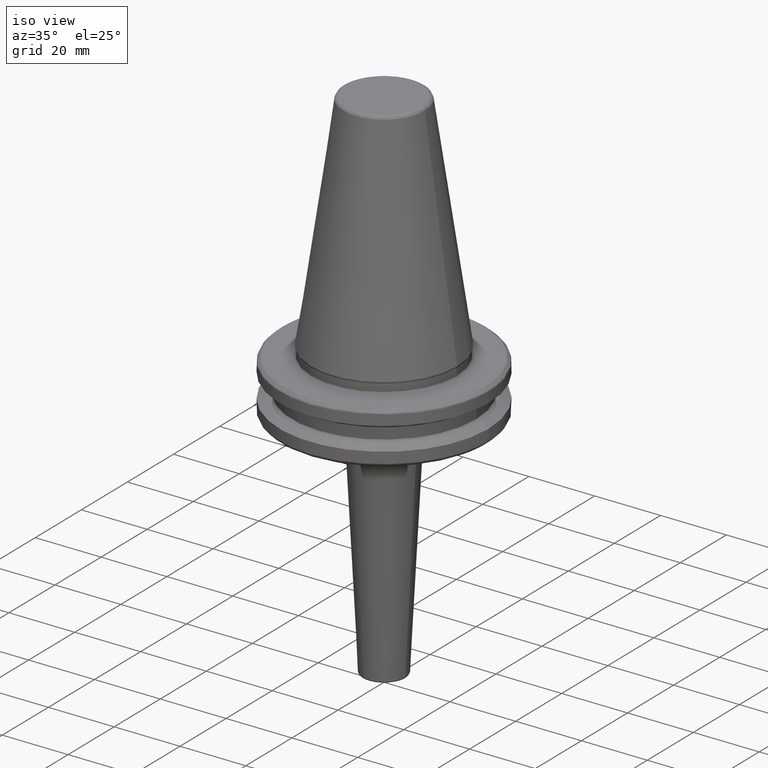
[diagram: clean part render]
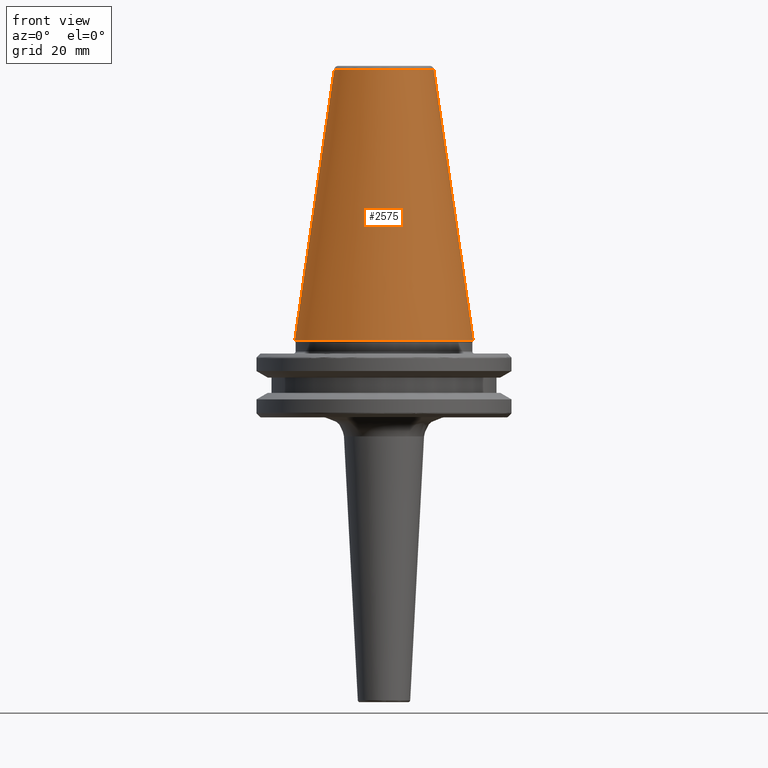
[diagram: tour spotlight — one face highlighted and labeled with its STEP entity id]
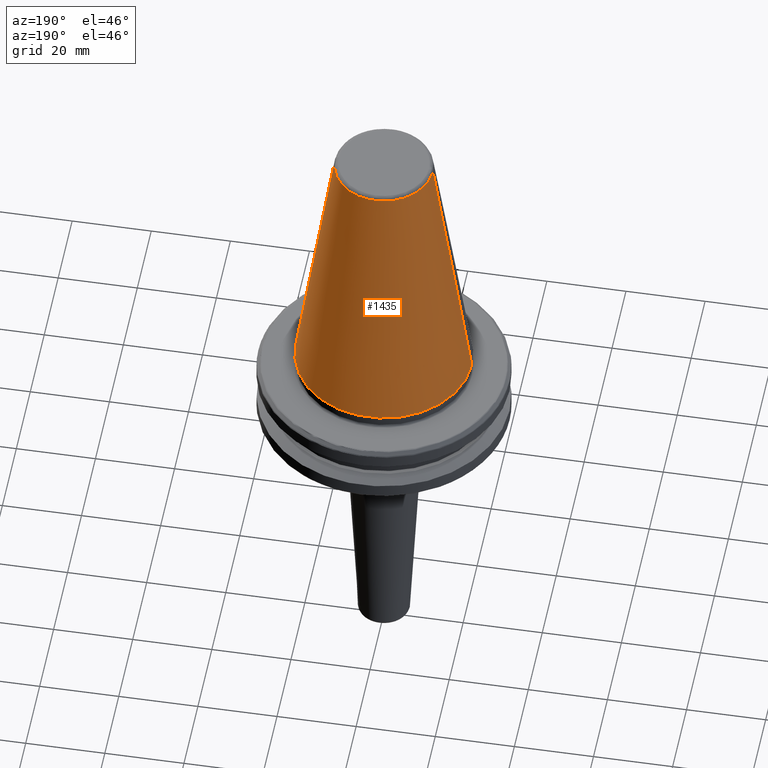
[diagram: tour spotlight — one face highlighted and labeled with its STEP entity id]
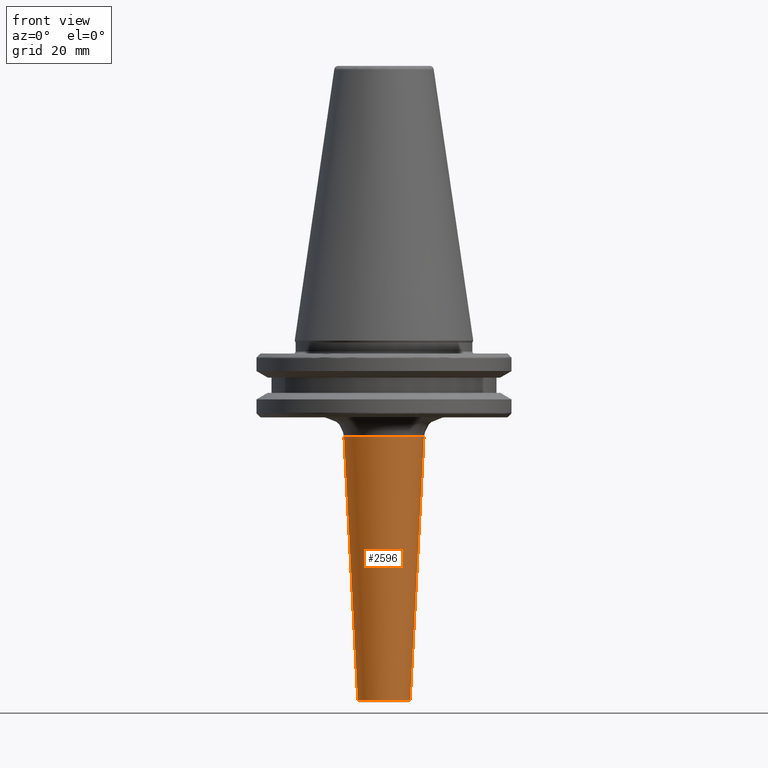
[diagram: tour spotlight — one face highlighted and labeled with its STEP entity id]
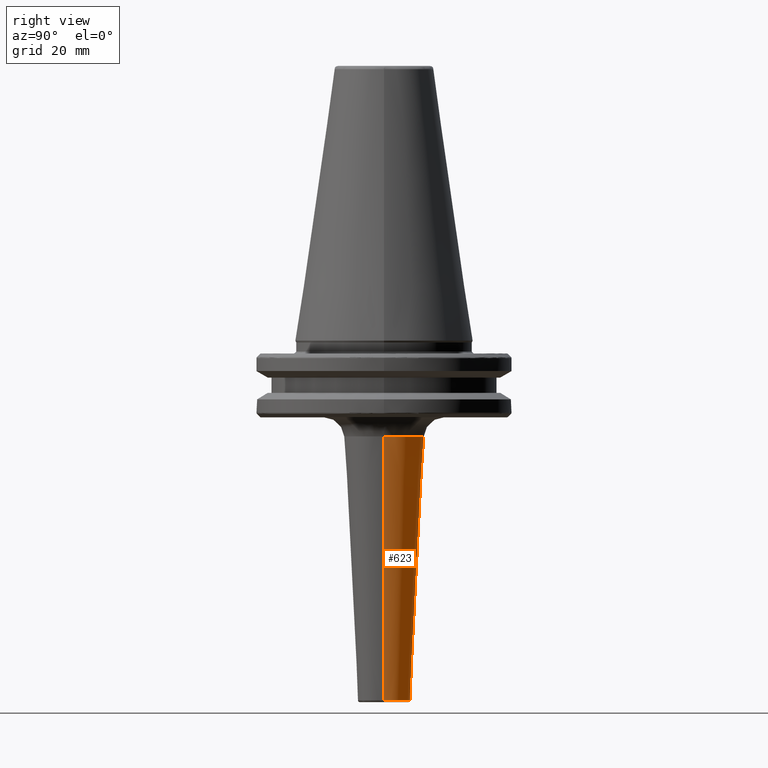
[diagram: tour spotlight — one face highlighted and labeled with its STEP entity id]
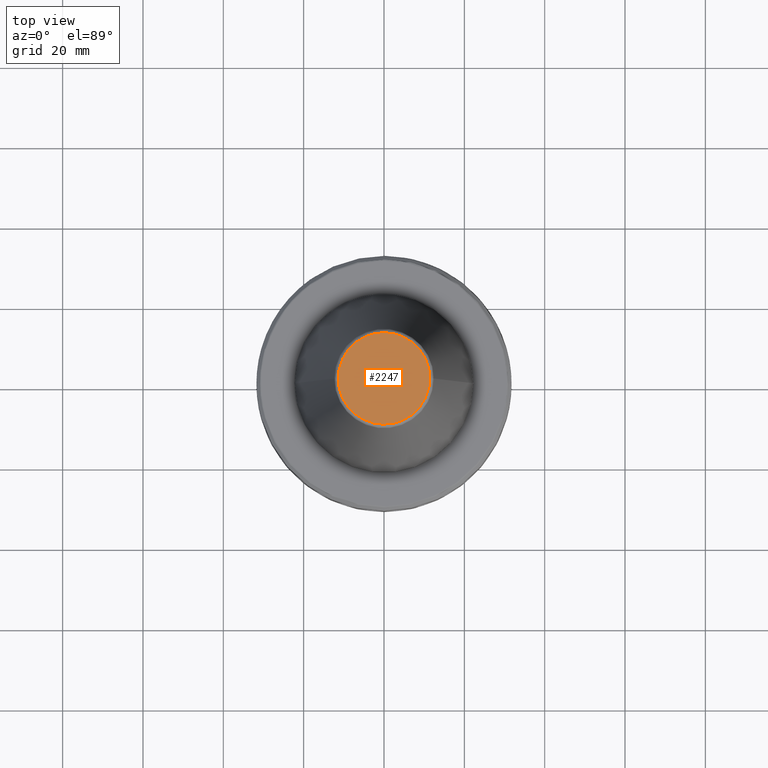
[diagram: tour spotlight — one face highlighted and labeled with its STEP entity id]
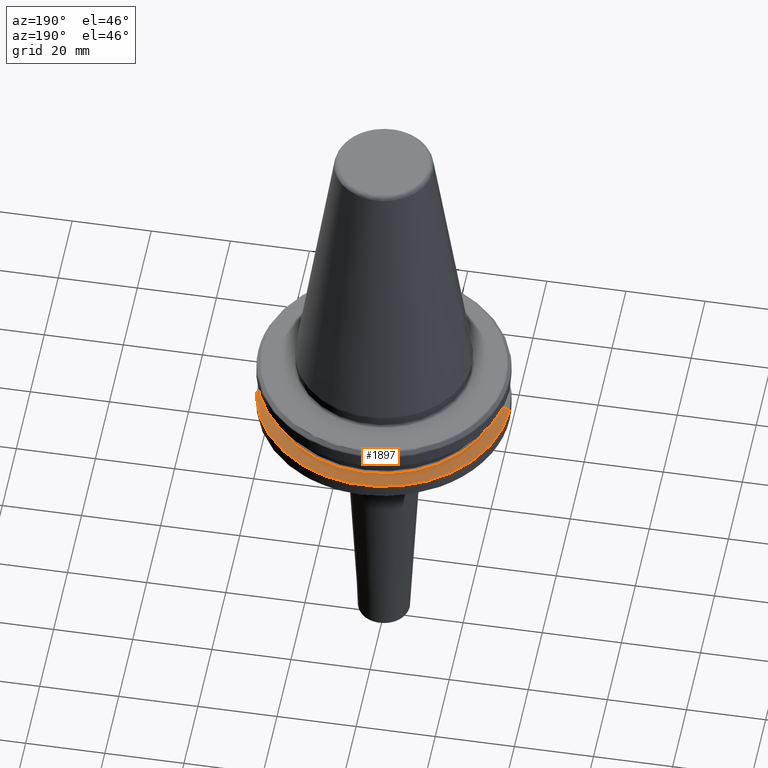
[diagram: tour spotlight — one face highlighted and labeled with its STEP entity id]
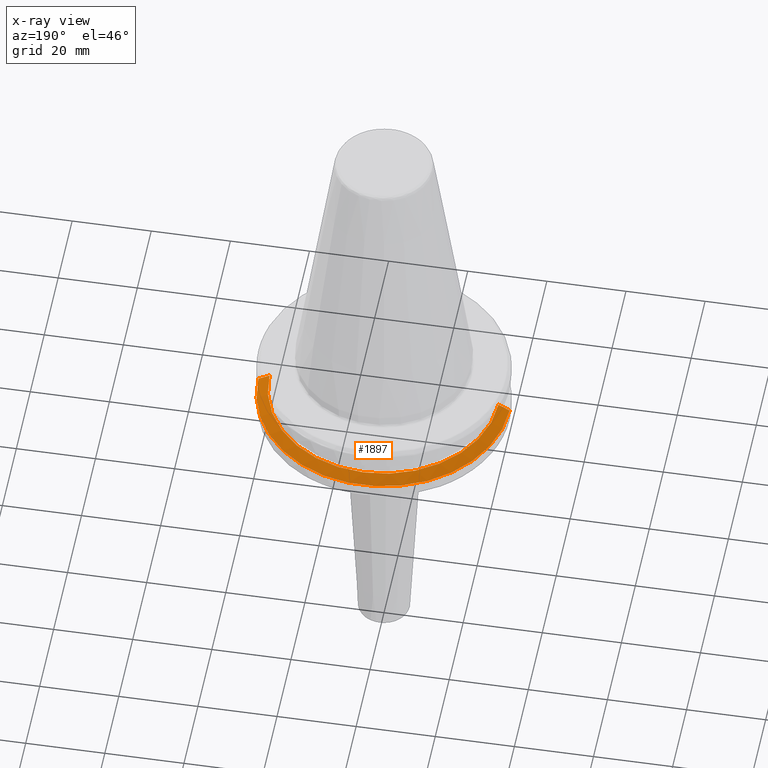
[diagram: x-ray of the same camera — body ghosted, this tour face saturated]
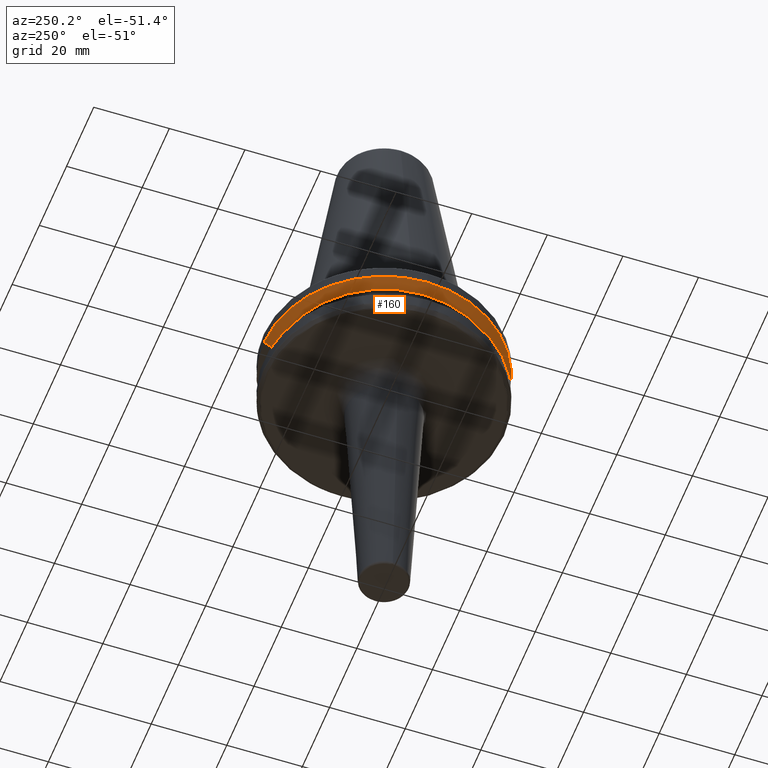
[diagram: tour spotlight — one face highlighted and labeled with its STEP entity id]
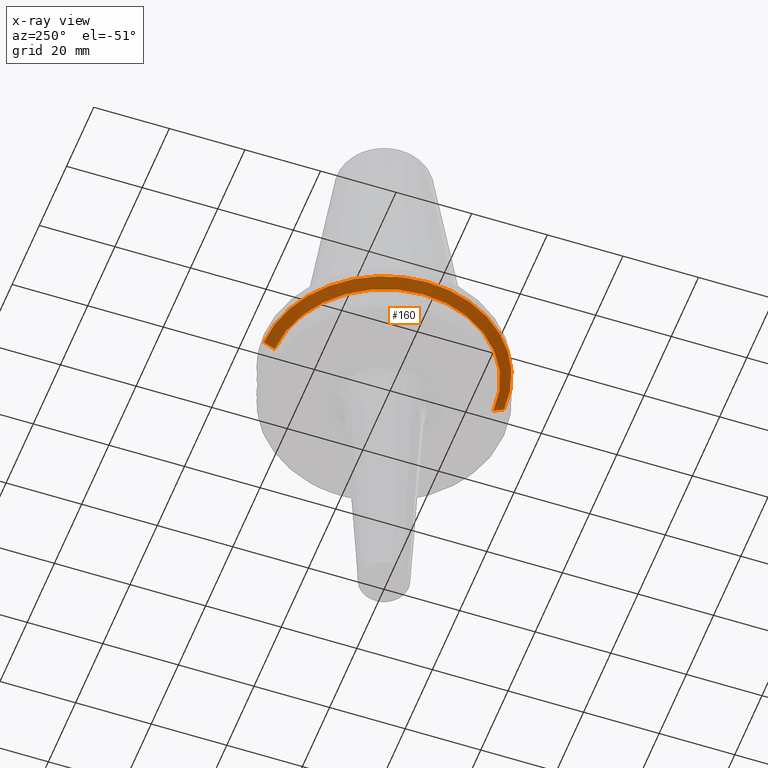
[diagram: x-ray of the same camera — body ghosted, this tour face saturated]
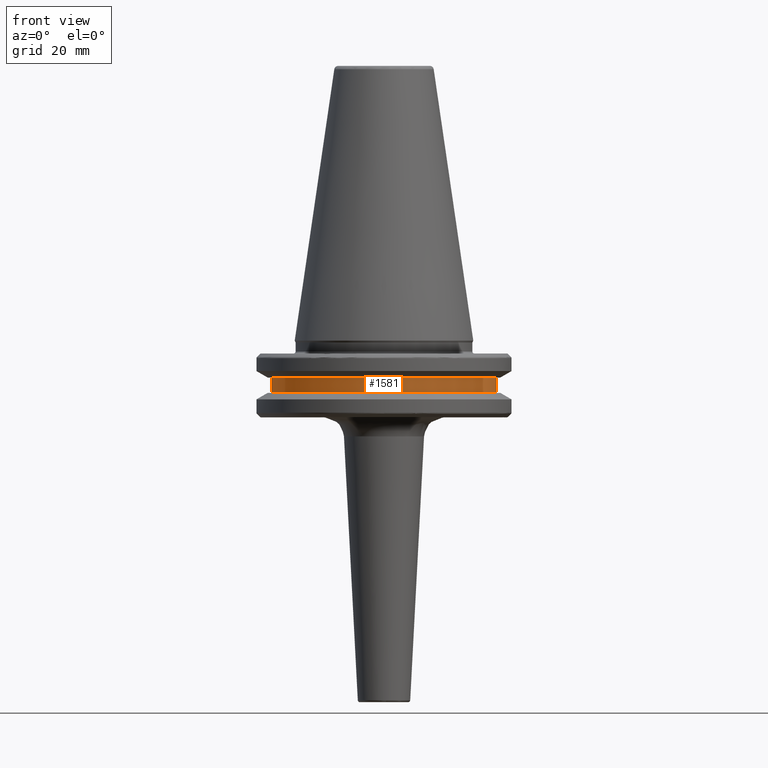
[diagram: tour spotlight — one face highlighted and labeled with its STEP entity id]
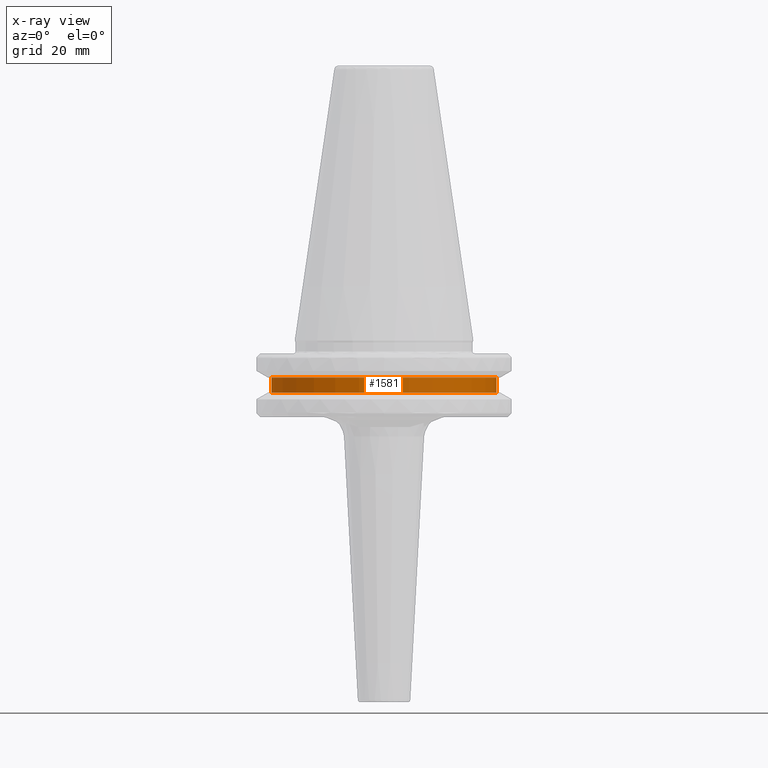
[diagram: x-ray of the same camera — body ghosted, this tour face saturated]
A machine part: a face-by-face anatomy tour. The part has 64 B-rep faces; the first image is the clean iso view, then the 8 largest visible faces are spotlighted one at a time (largest first), each with its STEP entity span.

Face 1 — front view, entity #2575. In plain terms, the highlighted conical surface has half-angle 8.297 deg.
Definition (entity closure, byte-faithful):
#354 = EDGE_CURVE ( 'NONE', #2271, #374, #592, .T. ) ;
#374 = VERTEX_POINT ( 'NONE', #1307 ) ;
#547 = EDGE_CURVE ( 'NONE', #1623, #1583, #2807, .T. ) ;
#592 = CIRCLE ( 'NONE', #1392, 22.22500000000000100 ) ;
#605 = DIRECTION ( 'NONE',  ( -0.0000000000000000000, -0.0000000000000000000, 1.000000000000000000 ) ) ;
#628 = AXIS2_PLACEMENT_3D ( 'NONE', #2269, #2731, #2703 ) ;
#656 = EDGE_CURVE ( 'NONE', #1623, #374, #2080, .T. ) ;
#728 = DIRECTION ( 'NONE',  ( 0.1443082272673070500, 1.767266086135363700E-017, -0.9895327864921743500 ) ) ;
#826 = ORIENTED_EDGE ( 'NONE', *, *, #354, .T. ) ;
#1058 = LINE ( 'NONE', #2000, #2778 ) ;
#1094 = ORIENTED_EDGE ( 'NONE', *, *, #1850, .T. ) ;
#1168 = CARTESIAN_POINT ( 'NONE',  ( 22.22500000000000100, 2.721777511104992800E-015, 0.0000000000000000000 ) ) ;
#1307 = CARTESIAN_POINT ( 'NONE',  ( 22.22500000000000500, 0.0000000000000000000, 0.0000000000000000000 ) ) ;
#1390 = CARTESIAN_POINT ( 'NONE',  ( 12.37469537611110800, 2.118620309691396900E-015, 67.54430822726729400 ) ) ;
#1392 = AXIS2_PLACEMENT_3D ( 'NONE', #2883, #605, #2424 ) ;
#1522 = CARTESIAN_POINT ( 'NONE',  ( 0.0000000000000000000, 0.0000000000000000000, 0.0000000000000000000 ) ) ;
#1533 = DIRECTION ( 'NONE',  ( -1.000000000000000000, 0.0000000000000000000, 0.0000000000000000000 ) ) ;
#1583 = VERTEX_POINT ( 'NONE', #1849 ) ;
#1623 = VERTEX_POINT ( 'NONE', #1390 ) ;
#1769 = DIRECTION ( 'NONE',  ( -0.1443082272673070500, 0.0000000000000000000, -0.9895327864921743500 ) ) ;
#1849 = CARTESIAN_POINT ( 'NONE',  ( -12.37469537611110800, 0.0000000000000000000, 67.54430822726729400 ) ) ;
#1850 = EDGE_CURVE ( 'NONE', #1583, #2271, #1058, .T. ) ;
#2000 = CARTESIAN_POINT ( 'NONE',  ( -22.22500000000000100, 0.0000000000000000000, 0.0000000000000000000 ) ) ;
#2080 = LINE ( 'NONE', #1168, #2468 ) ;
#2095 = AXIS2_PLACEMENT_3D ( 'NONE', #1522, #2878, #1533 ) ;
#2269 = CARTESIAN_POINT ( 'NONE',  ( 0.0000000000000000000, 0.0000000000000000000, 67.54430822726729400 ) ) ;
#2271 = VERTEX_POINT ( 'NONE', #2436 ) ;
#2381 = ORIENTED_EDGE ( 'NONE', *, *, #656, .F. ) ;
#2424 = DIRECTION ( 'NONE',  ( -1.000000000000000000, 0.0000000000000000000, 6.244223985518314900E-016 ) ) ;
#2436 = CARTESIAN_POINT ( 'NONE',  ( -22.22500000000000500, 2.721777511104993200E-015, 0.0000000000000000000 ) ) ;
#2468 = VECTOR ( 'NONE', #728, 1000.000000000000000 ) ;
#2575 = ADVANCED_FACE ( 'NONE', ( #3003 ), #3001, .T. ) ;
#2613 = ORIENTED_EDGE ( 'NONE', *, *, #547, .T. ) ;
#2703 = DIRECTION ( 'NONE',  ( -1.000000000000000000, 0.0000000000000000000, 0.0000000000000000000 ) ) ;
#2726 = EDGE_LOOP ( 'NONE', ( #2381, #2613, #1094, #826 ) ) ;
#2731 = DIRECTION ( 'NONE',  ( 0.0000000000000000000, 0.0000000000000000000, -1.000000000000000000 ) ) ;
#2778 = VECTOR ( 'NONE', #1769, 1000.000000000000000 ) ;
#2807 = CIRCLE ( 'NONE', #628, 12.37469537611110800 ) ;
#2878 = DIRECTION ( 'NONE',  ( 0.0000000000000000000, 0.0000000000000000000, -1.000000000000000000 ) ) ;
#2883 = CARTESIAN_POINT ( 'NONE',  ( 0.0000000000000000000, 0.0000000000000000000, 0.0000000000000000000 ) ) ;
#3001 = CONICAL_SURFACE ( 'NONE', #2095, 22.22500000000000100, 0.1448138465474190500 ) ;
#3003 = FACE_OUTER_BOUND ( 'NONE', #2726, .T. ) ;

Face 2 — auxiliary view, entity #1435. In plain terms, the highlighted conical surface has half-angle 8.297 deg.
Definition (entity closure, byte-faithful):
#66 = EDGE_CURVE ( 'NONE', #374, #2271, #1303, .T. ) ;
#374 = VERTEX_POINT ( 'NONE', #1307 ) ;
#484 = EDGE_LOOP ( 'NONE', ( #1814, #2718, #1549, #2696 ) ) ;
#553 = DIRECTION ( 'NONE',  ( 0.0000000000000000000, 0.0000000000000000000, -1.000000000000000000 ) ) ;
#656 = EDGE_CURVE ( 'NONE', #1623, #374, #2080, .T. ) ;
#728 = DIRECTION ( 'NONE',  ( 0.1443082272673070500, 1.767266086135363700E-017, -0.9895327864921743500 ) ) ;
#785 = CARTESIAN_POINT ( 'NONE',  ( 0.0000000000000000000, 0.0000000000000000000, 0.0000000000000000000 ) ) ;
#1058 = LINE ( 'NONE', #2000, #2778 ) ;
#1078 = DIRECTION ( 'NONE',  ( 0.0000000000000000000, 0.0000000000000000000, -1.000000000000000000 ) ) ;
#1168 = CARTESIAN_POINT ( 'NONE',  ( 22.22500000000000100, 2.721777511104992800E-015, 0.0000000000000000000 ) ) ;
#1273 = CIRCLE ( 'NONE', #2713, 12.37469537611110800 ) ;
#1303 = CIRCLE ( 'NONE', #2508, 22.22500000000000100 ) ;
#1307 = CARTESIAN_POINT ( 'NONE',  ( 22.22500000000000500, 0.0000000000000000000, 0.0000000000000000000 ) ) ;
#1390 = CARTESIAN_POINT ( 'NONE',  ( 12.37469537611110800, 2.118620309691396900E-015, 67.54430822726729400 ) ) ;
#1435 = ADVANCED_FACE ( 'NONE', ( #2303 ), #2707, .T. ) ;
#1446 = CARTESIAN_POINT ( 'NONE',  ( 0.0000000000000000000, 0.0000000000000000000, 0.0000000000000000000 ) ) ;
#1549 = ORIENTED_EDGE ( 'NONE', *, *, #66, .T. ) ;
#1559 = AXIS2_PLACEMENT_3D ( 'NONE', #785, #553, #2620 ) ;
#1583 = VERTEX_POINT ( 'NONE', #1849 ) ;
#1623 = VERTEX_POINT ( 'NONE', #1390 ) ;
#1769 = DIRECTION ( 'NONE',  ( -0.1443082272673070500, 0.0000000000000000000, -0.9895327864921743500 ) ) ;
#1814 = ORIENTED_EDGE ( 'NONE', *, *, #2686, .T. ) ;
#1849 = CARTESIAN_POINT ( 'NONE',  ( -12.37469537611110800, 0.0000000000000000000, 67.54430822726729400 ) ) ;
#1850 = EDGE_CURVE ( 'NONE', #1583, #2271, #1058, .T. ) ;
#2000 = CARTESIAN_POINT ( 'NONE',  ( -22.22500000000000100, 0.0000000000000000000, 0.0000000000000000000 ) ) ;
#2080 = LINE ( 'NONE', #1168, #2468 ) ;
#2271 = VERTEX_POINT ( 'NONE', #2436 ) ;
#2303 = FACE_OUTER_BOUND ( 'NONE', #484, .T. ) ;
#2436 = CARTESIAN_POINT ( 'NONE',  ( -22.22500000000000500, 2.721777511104993200E-015, 0.0000000000000000000 ) ) ;
#2448 = CARTESIAN_POINT ( 'NONE',  ( 0.0000000000000000000, 0.0000000000000000000, 67.54430822726729400 ) ) ;
#2468 = VECTOR ( 'NONE', #728, 1000.000000000000000 ) ;
#2508 = AXIS2_PLACEMENT_3D ( 'NONE', #1446, #2614, #2843 ) ;
#2614 = DIRECTION ( 'NONE',  ( -0.0000000000000000000, -0.0000000000000000000, 1.000000000000000000 ) ) ;
#2620 = DIRECTION ( 'NONE',  ( -1.000000000000000000, 0.0000000000000000000, 0.0000000000000000000 ) ) ;
#2686 = EDGE_CURVE ( 'NONE', #1583, #1623, #1273, .T. ) ;
#2688 = DIRECTION ( 'NONE',  ( -1.000000000000000000, 0.0000000000000000000, 0.0000000000000000000 ) ) ;
#2696 = ORIENTED_EDGE ( 'NONE', *, *, #1850, .F. ) ;
#2707 = CONICAL_SURFACE ( 'NONE', #1559, 22.22500000000000100, 0.1448138465474190500 ) ;
#2713 = AXIS2_PLACEMENT_3D ( 'NONE', #2448, #1078, #2688 ) ;
#2718 = ORIENTED_EDGE ( 'NONE', *, *, #656, .T. ) ;
#2778 = VECTOR ( 'NONE', #1769, 1000.000000000000000 ) ;
#2843 = DIRECTION ( 'NONE',  ( -1.000000000000000000, 0.0000000000000000000, 6.244223985518314900E-016 ) ) ;

Face 3 — front view, entity #2596. In plain terms, the highlighted conical surface has half-angle 3 deg.
Definition (entity closure, byte-faithful):
#10 = DIRECTION ( 'NONE',  ( 1.000000000000000000, 0.0000000000000000000, 0.0000000000000000000 ) ) ;
#31 = AXIS2_PLACEMENT_3D ( 'NONE', #1517, #95, #1741 ) ;
#95 = DIRECTION ( 'NONE',  ( 0.0000000000000000000, 0.0000000000000000000, -1.000000000000000000 ) ) ;
#190 = CIRCLE ( 'NONE', #750, 6.524832484019842800 ) ;
#239 = CARTESIAN_POINT ( 'NONE',  ( -9.967386710968712600, 1.220652823145169800E-015, -23.83832021878532700 ) ) ;
#298 = ORIENTED_EDGE ( 'NONE', *, *, #1210, .F. ) ;
#414 = LINE ( 'NONE', #2908, #2729 ) ;
#526 = VECTOR ( 'NONE', #2555, 1000.000000000000100 ) ;
#581 = AXIS2_PLACEMENT_3D ( 'NONE', #2001, #591, #2223 ) ;
#591 = DIRECTION ( 'NONE',  ( 0.0000000000000000000, -0.0000000000000000000, 1.000000000000000000 ) ) ;
#640 = VERTEX_POINT ( 'NONE', #1873 ) ;
#750 = AXIS2_PLACEMENT_3D ( 'NONE', #2780, #1432, #10 ) ;
#803 = CARTESIAN_POINT ( 'NONE',  ( -6.524832484019842800, 1.009857172398963600E-015, -89.52616797812147800 ) ) ;
#861 = EDGE_LOOP ( 'NONE', ( #298, #1363, #2610, #2272 ) ) ;
#1210 = EDGE_CURVE ( 'NONE', #1354, #2085, #1375, .T. ) ;
#1314 = CARTESIAN_POINT ( 'NONE',  ( 9.967386710968712600, 0.0000000000000000000, -23.83832021878532000 ) ) ;
#1354 = VERTEX_POINT ( 'NONE', #803 ) ;
#1363 = ORIENTED_EDGE ( 'NONE', *, *, #2971, .T. ) ;
#1375 = LINE ( 'NONE', #239, #526 ) ;
#1432 = DIRECTION ( 'NONE',  ( 0.0000000000000000000, 0.0000000000000000000, 1.000000000000000000 ) ) ;
#1440 = EDGE_CURVE ( 'NONE', #2655, #2085, #1634, .T. ) ;
#1517 = CARTESIAN_POINT ( 'NONE',  ( 0.0000000000000000000, 0.0000000000000000000, -23.83832021878532000 ) ) ;
#1558 = DIRECTION ( 'NONE',  ( 0.05233595624293729800, 0.0000000000000000000, 0.9986295347545742800 ) ) ;
#1634 = CIRCLE ( 'NONE', #31, 9.967386710968714400 ) ;
#1741 = DIRECTION ( 'NONE',  ( -1.000000000000000000, 0.0000000000000000000, 0.0000000000000000000 ) ) ;
#1818 = CONICAL_SURFACE ( 'NONE', #581, 9.967386710968712600, 0.05235987755982334000 ) ;
#1859 = CARTESIAN_POINT ( 'NONE',  ( -9.967386710968712600, 1.220652823145169800E-015, -23.83832021878532000 ) ) ;
#1873 = CARTESIAN_POINT ( 'NONE',  ( 6.524832484019842800, 0.0000000000000000000, -89.52616797812147800 ) ) ;
#1899 = EDGE_CURVE ( 'NONE', #640, #2655, #414, .T. ) ;
#2001 = CARTESIAN_POINT ( 'NONE',  ( 0.0000000000000000000, 0.0000000000000000000, -23.83832021878532700 ) ) ;
#2085 = VERTEX_POINT ( 'NONE', #1859 ) ;
#2223 = DIRECTION ( 'NONE',  ( 1.000000000000000000, 0.0000000000000000000, 0.0000000000000000000 ) ) ;
#2272 = ORIENTED_EDGE ( 'NONE', *, *, #1440, .T. ) ;
#2318 = FACE_OUTER_BOUND ( 'NONE', #861, .T. ) ;
#2555 = DIRECTION ( 'NONE',  ( -0.05233595624293729800, 6.409306129322909800E-018, 0.9986295347545742800 ) ) ;
#2596 = ADVANCED_FACE ( 'NONE', ( #2318 ), #1818, .T. ) ;
#2610 = ORIENTED_EDGE ( 'NONE', *, *, #1899, .T. ) ;
#2655 = VERTEX_POINT ( 'NONE', #1314 ) ;
#2729 = VECTOR ( 'NONE', #1558, 1000.000000000000100 ) ;
#2780 = CARTESIAN_POINT ( 'NONE',  ( 0.0000000000000000000, 0.0000000000000000000, -89.52616797812147800 ) ) ;
#2908 = CARTESIAN_POINT ( 'NONE',  ( 9.967386710968712600, 0.0000000000000000000, -23.83832021878532700 ) ) ;
#2971 = EDGE_CURVE ( 'NONE', #1354, #640, #190, .T. ) ;

Face 4 — right view, entity #623. In plain terms, the highlighted conical surface has half-angle 3 deg.
Definition (entity closure, byte-faithful):
#239 = CARTESIAN_POINT ( 'NONE',  ( -9.967386710968712600, 1.220652823145169800E-015, -23.83832021878532700 ) ) ;
#249 = CIRCLE ( 'NONE', #1379, 9.967386710968714400 ) ;
#414 = LINE ( 'NONE', #2908, #2729 ) ;
#464 = DIRECTION ( 'NONE',  ( 0.0000000000000000000, 0.0000000000000000000, 1.000000000000000000 ) ) ;
#526 = VECTOR ( 'NONE', #2555, 1000.000000000000100 ) ;
#623 = ADVANCED_FACE ( 'NONE', ( #1473 ), #1333, .T. ) ;
#640 = VERTEX_POINT ( 'NONE', #1873 ) ;
#721 = DIRECTION ( 'NONE',  ( 1.000000000000000000, 0.0000000000000000000, 0.0000000000000000000 ) ) ;
#735 = CARTESIAN_POINT ( 'NONE',  ( 0.0000000000000000000, 0.0000000000000000000, -23.83832021878532700 ) ) ;
#803 = CARTESIAN_POINT ( 'NONE',  ( -6.524832484019842800, 1.009857172398963600E-015, -89.52616797812147800 ) ) ;
#821 = ORIENTED_EDGE ( 'NONE', *, *, #2928, .T. ) ;
#1062 = CARTESIAN_POINT ( 'NONE',  ( 0.0000000000000000000, 0.0000000000000000000, -23.83832021878532000 ) ) ;
#1210 = EDGE_CURVE ( 'NONE', #1354, #2085, #1375, .T. ) ;
#1292 = EDGE_LOOP ( 'NONE', ( #2110, #1490, #821, #1479 ) ) ;
#1298 = DIRECTION ( 'NONE',  ( -1.000000000000000000, 0.0000000000000000000, 0.0000000000000000000 ) ) ;
#1314 = CARTESIAN_POINT ( 'NONE',  ( 9.967386710968712600, 0.0000000000000000000, -23.83832021878532000 ) ) ;
#1333 = CONICAL_SURFACE ( 'NONE', #2115, 9.967386710968712600, 0.05235987755982334000 ) ;
#1354 = VERTEX_POINT ( 'NONE', #803 ) ;
#1375 = LINE ( 'NONE', #239, #526 ) ;
#1379 = AXIS2_PLACEMENT_3D ( 'NONE', #1062, #2662, #1298 ) ;
#1473 = FACE_OUTER_BOUND ( 'NONE', #1292, .T. ) ;
#1479 = ORIENTED_EDGE ( 'NONE', *, *, #1899, .F. ) ;
#1490 = ORIENTED_EDGE ( 'NONE', *, *, #1210, .T. ) ;
#1558 = DIRECTION ( 'NONE',  ( 0.05233595624293729800, 0.0000000000000000000, 0.9986295347545742800 ) ) ;
#1859 = CARTESIAN_POINT ( 'NONE',  ( -9.967386710968712600, 1.220652823145169800E-015, -23.83832021878532000 ) ) ;
#1871 = CARTESIAN_POINT ( 'NONE',  ( 0.0000000000000000000, 0.0000000000000000000, -89.52616797812147800 ) ) ;
#1873 = CARTESIAN_POINT ( 'NONE',  ( 6.524832484019842800, 0.0000000000000000000, -89.52616797812147800 ) ) ;
#1899 = EDGE_CURVE ( 'NONE', #640, #2655, #414, .T. ) ;
#2085 = VERTEX_POINT ( 'NONE', #1859 ) ;
#2104 = DIRECTION ( 'NONE',  ( 1.000000000000000000, 0.0000000000000000000, 0.0000000000000000000 ) ) ;
#2110 = ORIENTED_EDGE ( 'NONE', *, *, #2945, .T. ) ;
#2115 = AXIS2_PLACEMENT_3D ( 'NONE', #735, #2588, #721 ) ;
#2516 = AXIS2_PLACEMENT_3D ( 'NONE', #1871, #464, #2104 ) ;
#2555 = DIRECTION ( 'NONE',  ( -0.05233595624293729800, 6.409306129322909800E-018, 0.9986295347545742800 ) ) ;
#2568 = CIRCLE ( 'NONE', #2516, 6.524832484019842800 ) ;
#2588 = DIRECTION ( 'NONE',  ( 0.0000000000000000000, -0.0000000000000000000, 1.000000000000000000 ) ) ;
#2655 = VERTEX_POINT ( 'NONE', #1314 ) ;
#2662 = DIRECTION ( 'NONE',  ( 0.0000000000000000000, 0.0000000000000000000, -1.000000000000000000 ) ) ;
#2729 = VECTOR ( 'NONE', #1558, 1000.000000000000100 ) ;
#2908 = CARTESIAN_POINT ( 'NONE',  ( 9.967386710968712600, 0.0000000000000000000, -23.83832021878532700 ) ) ;
#2928 = EDGE_CURVE ( 'NONE', #2085, #2655, #249, .T. ) ;
#2945 = EDGE_CURVE ( 'NONE', #640, #1354, #2568, .T. ) ;

Face 5 — top view, entity #2247. In plain terms, the highlighted planar face has unit normal (0, 0, 1).
Definition (entity closure, byte-faithful):
#108 = DIRECTION ( 'NONE',  ( 0.0000000000000000000, 0.0000000000000000000, 1.000000000000000000 ) ) ;
#147 = EDGE_LOOP ( 'NONE', ( #1812, #415 ) ) ;
#222 = EDGE_CURVE ( 'NONE', #2769, #2232, #2635, .T. ) ;
#328 = CARTESIAN_POINT ( 'NONE',  ( 11.38516258961893100, 0.0000000000000000000, 68.39999999999999100 ) ) ;
#350 = EDGE_CURVE ( 'NONE', #2232, #2769, #1418, .T. ) ;
#415 = ORIENTED_EDGE ( 'NONE', *, *, #350, .F. ) ;
#660 = CARTESIAN_POINT ( 'NONE',  ( 11.38516258961893100, 22.77032517923785800, 68.39999999999999100 ) ) ;
#698 = AXIS2_PLACEMENT_3D ( 'NONE', #813, #108, #1752 ) ;
#813 = CARTESIAN_POINT ( 'NONE',  ( 0.0000000000000000000, -8.337524199435086500E-014, 68.39999999999999100 ) ) ;
#852 = CARTESIAN_POINT ( 'NONE',  ( 11.38516258961893100, -22.77032517923785800, 68.39999999999999100 ) ) ;
#1123 = CARTESIAN_POINT ( 'NONE',  ( -11.38516258961893100, 1.418516855507481500E-015, 68.39999999999999100 ) ) ;
#1269 = PLANE ( 'NONE',  #698 ) ;
#1296 = CARTESIAN_POINT ( 'NONE',  ( 11.38516258961893100, 0.0000000000000000000, 68.39999999999999100 ) ) ;
#1335 = CARTESIAN_POINT ( 'NONE',  ( 11.38516258961893100, 0.0000000000000000000, 68.39999999999999100 ) ) ;
#1418 =( BOUNDED_CURVE ( )  B_SPLINE_CURVE ( 3, ( #1296, #852, #2006, #1994 ),
 .UNSPECIFIED., .F., .F. ) 
 B_SPLINE_CURVE_WITH_KNOTS ( ( 4, 4 ),
 ( 0.0000000000000000000, 1.000000000000000000 ),
 .UNSPECIFIED. ) 
 CURVE ( )  GEOMETRIC_REPRESENTATION_ITEM ( )  RATIONAL_B_SPLINE_CURVE ( ( 1.000000000000000000, 0.3333333333333333700, 0.3333333333333333700, 1.000000000000000000 ) ) 
 REPRESENTATION_ITEM ( '' )  );
#1752 = DIRECTION ( 'NONE',  ( 1.000000000000000000, 0.0000000000000000000, -0.0000000000000000000 ) ) ;
#1807 = CARTESIAN_POINT ( 'NONE',  ( -11.38516258961893100, 1.418516855507481500E-015, 68.39999999999999100 ) ) ;
#1812 = ORIENTED_EDGE ( 'NONE', *, *, #222, .F. ) ;
#1837 = CARTESIAN_POINT ( 'NONE',  ( -11.38516258961892700, 22.77032517923785800, 68.39999999999999100 ) ) ;
#1994 = CARTESIAN_POINT ( 'NONE',  ( -11.38516258961893100, 1.418516855507481500E-015, 68.39999999999999100 ) ) ;
#2006 = CARTESIAN_POINT ( 'NONE',  ( -11.38516258961893400, -22.77032517923785800, 68.39999999999999100 ) ) ;
#2232 = VERTEX_POINT ( 'NONE', #328 ) ;
#2247 = ADVANCED_FACE ( 'NONE', ( #2300 ), #1269, .T. ) ;
#2300 = FACE_OUTER_BOUND ( 'NONE', #147, .T. ) ;
#2635 =( BOUNDED_CURVE ( )  B_SPLINE_CURVE ( 3, ( #1123, #1837, #660, #1335 ),
 .UNSPECIFIED., .F., .F. ) 
 B_SPLINE_CURVE_WITH_KNOTS ( ( 4, 4 ),
 ( 0.0000000000000000000, 1.000000000000000000 ),
 .UNSPECIFIED. ) 
 CURVE ( )  GEOMETRIC_REPRESENTATION_ITEM ( )  RATIONAL_B_SPLINE_CURVE ( ( 1.000000000000000000, 0.3333333333333333700, 0.3333333333333333700, 1.000000000000000000 ) ) 
 REPRESENTATION_ITEM ( '' )  );
#2769 = VERTEX_POINT ( 'NONE', #1807 ) ;

Face 6 — auxiliary view, entity #1897. An x-ray twin of the same camera follows (body ghosted, this face saturated) — the face is partly hidden behind the body. In plain terms, the highlighted conical surface has half-angle 60 deg.
Definition (entity closure, byte-faithful):
#2 = DIRECTION ( 'NONE',  ( -1.000000000000000000, 0.0000000000000000000, 0.0000000000000000000 ) ) ;
#216 = AXIS2_PLACEMENT_3D ( 'NONE', #2700, #1334, #2927 ) ;
#293 = VERTEX_POINT ( 'NONE', #586 ) ;
#362 = ORIENTED_EDGE ( 'NONE', *, *, #1160, .T. ) ;
#363 = CARTESIAN_POINT ( 'NONE',  ( 0.0000000000000000000, 0.0000000000000000000, -14.62183664205671700 ) ) ;
#447 = CARTESIAN_POINT ( 'NONE',  ( -28.94089653438084400, 0.0000000000000000000, -13.00000000000000700 ) ) ;
#448 = LINE ( 'NONE', #757, #2837 ) ;
#586 = CARTESIAN_POINT ( 'NONE',  ( -31.75000000000000700, 3.888253587292847300E-015, -14.62183664205671500 ) ) ;
#703 = DIRECTION ( 'NONE',  ( 0.8660254037844418200, 1.060575238724910700E-016, -0.4999999999999945000 ) ) ;
#757 = CARTESIAN_POINT ( 'NONE',  ( -31.75000000000000700, 0.0000000000000000000, -14.62183664205671700 ) ) ;
#832 = CARTESIAN_POINT ( 'NONE',  ( 31.75000000000000700, 0.0000000000000000000, -14.62183664205671500 ) ) ;
#847 = DIRECTION ( 'NONE',  ( 0.0000000000000000000, 0.0000000000000000000, -1.000000000000000000 ) ) ;
#937 = VERTEX_POINT ( 'NONE', #832 ) ;
#961 = AXIS2_PLACEMENT_3D ( 'NONE', #363, #847, #1069 ) ;
#1046 = EDGE_CURVE ( 'NONE', #1598, #1660, #1448, .T. ) ;
#1069 = DIRECTION ( 'NONE',  ( -1.000000000000000000, 0.0000000000000000000, 0.0000000000000000000 ) ) ;
#1122 = AXIS2_PLACEMENT_3D ( 'NONE', #2770, #1422, #2 ) ;
#1126 = EDGE_CURVE ( 'NONE', #1660, #937, #2451, .T. ) ;
#1136 = ORIENTED_EDGE ( 'NONE', *, *, #1311, .F. ) ;
#1160 = EDGE_CURVE ( 'NONE', #937, #293, #1844, .T. ) ;
#1311 = EDGE_CURVE ( 'NONE', #1598, #293, #448, .T. ) ;
#1334 = DIRECTION ( 'NONE',  ( 0.0000000000000000000, 0.0000000000000000000, -1.000000000000000000 ) ) ;
#1413 = CARTESIAN_POINT ( 'NONE',  ( 31.75000000000000700, 3.888253587292847300E-015, -14.62183664205671700 ) ) ;
#1422 = DIRECTION ( 'NONE',  ( -0.0000000000000000000, -0.0000000000000000000, 1.000000000000000000 ) ) ;
#1448 = CIRCLE ( 'NONE', #216, 28.94089653438084400 ) ;
#1542 = CONICAL_SURFACE ( 'NONE', #961, 31.75000000000000700, 1.047197551196604100 ) ;
#1598 = VERTEX_POINT ( 'NONE', #447 ) ;
#1660 = VERTEX_POINT ( 'NONE', #1857 ) ;
#1844 = CIRCLE ( 'NONE', #1122, 31.75000000000000700 ) ;
#1857 = CARTESIAN_POINT ( 'NONE',  ( 28.94089653438084400, 3.716245608910634800E-015, -13.00000000000000700 ) ) ;
#1897 = ADVANCED_FACE ( 'NONE', ( #2211 ), #1542, .T. ) ;
#1912 = VECTOR ( 'NONE', #703, 1000.000000000000000 ) ;
#2146 = DIRECTION ( 'NONE',  ( -0.8660254037844418200, 0.0000000000000000000, -0.4999999999999945000 ) ) ;
#2211 = FACE_OUTER_BOUND ( 'NONE', #2414, .T. ) ;
#2215 = ORIENTED_EDGE ( 'NONE', *, *, #1126, .T. ) ;
#2414 = EDGE_LOOP ( 'NONE', ( #2994, #2215, #362, #1136 ) ) ;
#2451 = LINE ( 'NONE', #1413, #1912 ) ;
#2700 = CARTESIAN_POINT ( 'NONE',  ( 0.0000000000000000000, 0.0000000000000000000, -13.00000000000000700 ) ) ;
#2770 = CARTESIAN_POINT ( 'NONE',  ( 0.0000000000000000000, 0.0000000000000000000, -14.62183664205671500 ) ) ;
#2837 = VECTOR ( 'NONE', #2146, 1000.000000000000000 ) ;
#2927 = DIRECTION ( 'NONE',  ( -1.000000000000000000, 0.0000000000000000000, 0.0000000000000000000 ) ) ;
#2994 = ORIENTED_EDGE ( 'NONE', *, *, #1046, .T. ) ;

Face 7 — auxiliary view, entity #160. An x-ray twin of the same camera follows (body ghosted, this face saturated) — the face is partly hidden behind the body. In plain terms, the highlighted conical surface has half-angle 60 deg.
Definition (entity closure, byte-faithful):
#21 = LINE ( 'NONE', #2580, #2959 ) ;
#148 = EDGE_CURVE ( 'NONE', #2207, #2776, #21, .T. ) ;
#160 = ADVANCED_FACE ( 'NONE', ( #2053 ), #718, .T. ) ;
#244 = AXIS2_PLACEMENT_3D ( 'NONE', #606, #2236, #853 ) ;
#503 = ORIENTED_EDGE ( 'NONE', *, *, #2335, .F. ) ;
#529 = CARTESIAN_POINT ( 'NONE',  ( 0.0000000000000000000, -31.75000000000000000, -7.578163357943284800 ) ) ;
#606 = CARTESIAN_POINT ( 'NONE',  ( 0.0000000000000000000, 0.0000000000000000000, -7.578163357943284800 ) ) ;
#621 = CARTESIAN_POINT ( 'NONE',  ( 3.888253587292846500E-015, 31.75000000000000000, -7.578163357943284800 ) ) ;
#643 = DIRECTION ( 'NONE',  ( 0.0000000000000000000, -1.000000000000000000, 0.0000000000000000000 ) ) ;
#665 = VERTEX_POINT ( 'NONE', #2325 ) ;
#675 = CARTESIAN_POINT ( 'NONE',  ( 0.0000000000000000000, -31.75000000000000700, -7.578163357943281200 ) ) ;
#676 = CIRCLE ( 'NONE', #1834, 28.94089653438084400 ) ;
#686 = EDGE_CURVE ( 'NONE', #2207, #2310, #676, .T. ) ;
#718 = CONICAL_SURFACE ( 'NONE', #2356, 31.75000000000000700, 1.047197551196598700 ) ;
#800 = LINE ( 'NONE', #675, #2481 ) ;
#853 = DIRECTION ( 'NONE',  ( 1.000000000000000000, 0.0000000000000000000, 0.0000000000000000000 ) ) ;
#1097 = DIRECTION ( 'NONE',  ( 0.0000000000000000000, 0.0000000000000000000, 1.000000000000000000 ) ) ;
#1206 = ORIENTED_EDGE ( 'NONE', *, *, #686, .T. ) ;
#1318 = EDGE_LOOP ( 'NONE', ( #1457, #1206, #1906, #503, #2847 ) ) ;
#1319 = CARTESIAN_POINT ( 'NONE',  ( 0.0000000000000000000, -28.94089653438084400, -9.200000000000013500 ) ) ;
#1332 = VERTEX_POINT ( 'NONE', #529 ) ;
#1378 = DIRECTION ( 'NONE',  ( 0.0000000000000000000, -1.000000000000000000, 0.0000000000000000000 ) ) ;
#1389 = DIRECTION ( 'NONE',  ( 0.0000000000000000000, -1.365923996832131300E-017, 1.000000000000000000 ) ) ;
#1457 = ORIENTED_EDGE ( 'NONE', *, *, #148, .F. ) ;
#1573 = CIRCLE ( 'NONE', #2875, 31.75000000000000000 ) ;
#1626 = EDGE_CURVE ( 'NONE', #2310, #1332, #800, .T. ) ;
#1834 = AXIS2_PLACEMENT_3D ( 'NONE', #1843, #1389, #1378 ) ;
#1843 = CARTESIAN_POINT ( 'NONE',  ( 0.0000000000000000000, 2.215305588326933300E-017, -9.200000000000013500 ) ) ;
#1906 = ORIENTED_EDGE ( 'NONE', *, *, #1626, .T. ) ;
#2053 = FACE_OUTER_BOUND ( 'NONE', #1318, .T. ) ;
#2164 = DIRECTION ( 'NONE',  ( 1.060575238724907500E-016, 0.8660254037844391500, 0.4999999999999991100 ) ) ;
#2207 = VERTEX_POINT ( 'NONE', #2636 ) ;
#2236 = DIRECTION ( 'NONE',  ( 0.0000000000000000000, 0.0000000000000000000, 1.000000000000000000 ) ) ;
#2307 = EDGE_CURVE ( 'NONE', #2776, #665, #2753, .T. ) ;
#2310 = VERTEX_POINT ( 'NONE', #1319 ) ;
#2325 = CARTESIAN_POINT ( 'NONE',  ( -31.75000000000000000, 3.888253587292846500E-015, -7.578163357943284800 ) ) ;
#2335 = EDGE_CURVE ( 'NONE', #665, #1332, #1573, .T. ) ;
#2356 = AXIS2_PLACEMENT_3D ( 'NONE', #2739, #2949, #643 ) ;
#2462 = CARTESIAN_POINT ( 'NONE',  ( 0.0000000000000000000, 0.0000000000000000000, -7.578163357943284800 ) ) ;
#2481 = VECTOR ( 'NONE', #2987, 1000.000000000000000 ) ;
#2580 = CARTESIAN_POINT ( 'NONE',  ( 3.888253587292847300E-015, 31.75000000000000700, -7.578163357943281200 ) ) ;
#2636 = CARTESIAN_POINT ( 'NONE',  ( 3.716245608910634800E-015, 28.94089653438084400, -9.200000000000013500 ) ) ;
#2698 = DIRECTION ( 'NONE',  ( 1.000000000000000000, 0.0000000000000000000, 0.0000000000000000000 ) ) ;
#2739 = CARTESIAN_POINT ( 'NONE',  ( 0.0000000000000000000, 0.0000000000000000000, -7.578163357943281200 ) ) ;
#2753 = CIRCLE ( 'NONE', #244, 31.75000000000000000 ) ;
#2776 = VERTEX_POINT ( 'NONE', #621 ) ;
#2847 = ORIENTED_EDGE ( 'NONE', *, *, #2307, .F. ) ;
#2875 = AXIS2_PLACEMENT_3D ( 'NONE', #2462, #1097, #2698 ) ;
#2949 = DIRECTION ( 'NONE',  ( 0.0000000000000000000, -1.365923996832131300E-017, 1.000000000000000000 ) ) ;
#2959 = VECTOR ( 'NONE', #2164, 1000.000000000000000 ) ;
#2987 = DIRECTION ( 'NONE',  ( 0.0000000000000000000, -0.8660254037844391500, 0.4999999999999991100 ) ) ;

Face 8 — front view, entity #1581. An x-ray twin of the same camera follows (body ghosted, this face saturated) — the face is partly hidden behind the body. In plain terms, the highlighted cylindrical surface (partial cylindrical patch) has radius 28 mm, axis along (0, 0, 1).
Definition (entity closure, byte-faithful):
#107 = VERTEX_POINT ( 'NONE', #467 ) ;
#126 = EDGE_CURVE ( 'NONE', #2747, #1874, #594, .T. ) ;
#229 = EDGE_LOOP ( 'NONE', ( #1694, #2542, #682, #2062 ) ) ;
#235 = CARTESIAN_POINT ( 'NONE',  ( -28.00000000000000000, 3.429011037612589300E-015, 113.5216080541959500 ) ) ;
#419 = EDGE_CURVE ( 'NONE', #2747, #107, #2284, .T. ) ;
#459 = LINE ( 'NONE', #2501, #2856 ) ;
#467 = CARTESIAN_POINT ( 'NONE',  ( 28.00000000000000000, 0.0000000000000000000, -13.00000000000001100 ) ) ;
#520 = CIRCLE ( 'NONE', #1606, 28.00000000000000000 ) ;
#562 = DIRECTION ( 'NONE',  ( -0.0000000000000000000, -0.0000000000000000000, -1.000000000000000000 ) ) ;
#594 = LINE ( 'NONE', #235, #2348 ) ;
#682 = ORIENTED_EDGE ( 'NONE', *, *, #875, .T. ) ;
#700 = CYLINDRICAL_SURFACE ( 'NONE', #2298, 28.00000000000000000 ) ;
#745 = DIRECTION ( 'NONE',  ( 1.000000000000000000, 0.0000000000000000000, 0.0000000000000000000 ) ) ;
#875 = EDGE_CURVE ( 'NONE', #107, #1689, #459, .T. ) ;
#888 = AXIS2_PLACEMENT_3D ( 'NONE', #2367, #998, #745 ) ;
#998 = DIRECTION ( 'NONE',  ( 0.0000000000000000000, 0.0000000000000000000, 1.000000000000000000 ) ) ;
#1134 = DIRECTION ( 'NONE',  ( 0.0000000000000000000, 0.0000000000000000000, 1.000000000000000000 ) ) ;
#1161 = CARTESIAN_POINT ( 'NONE',  ( 28.00000000000000000, 0.0000000000000000000, -9.199999999999999300 ) ) ;
#1313 = CARTESIAN_POINT ( 'NONE',  ( -28.00000000000000000, 3.429011037612589300E-015, -9.199999999999999300 ) ) ;
#1462 = DIRECTION ( 'NONE',  ( 0.0000000000000000000, 0.0000000000000000000, 1.000000000000000000 ) ) ;
#1581 = ADVANCED_FACE ( 'NONE', ( #1963 ), #700, .T. ) ;
#1606 = AXIS2_PLACEMENT_3D ( 'NONE', #1970, #562, #2191 ) ;
#1627 = DIRECTION ( 'NONE',  ( 1.000000000000000000, 0.0000000000000000000, 0.0000000000000000000 ) ) ;
#1689 = VERTEX_POINT ( 'NONE', #1161 ) ;
#1694 = ORIENTED_EDGE ( 'NONE', *, *, #126, .F. ) ;
#1874 = VERTEX_POINT ( 'NONE', #1313 ) ;
#1963 = FACE_OUTER_BOUND ( 'NONE', #229, .T. ) ;
#1970 = CARTESIAN_POINT ( 'NONE',  ( 0.0000000000000000000, 0.0000000000000000000, -9.199999999999999300 ) ) ;
#2062 = ORIENTED_EDGE ( 'NONE', *, *, #2212, .T. ) ;
#2078 = DIRECTION ( 'NONE',  ( 0.0000000000000000000, 0.0000000000000000000, 1.000000000000000000 ) ) ;
#2191 = DIRECTION ( 'NONE',  ( 1.000000000000000000, 0.0000000000000000000, 0.0000000000000000000 ) ) ;
#2212 = EDGE_CURVE ( 'NONE', #1689, #1874, #520, .T. ) ;
#2284 = CIRCLE ( 'NONE', #888, 28.00000000000000000 ) ;
#2298 = AXIS2_PLACEMENT_3D ( 'NONE', #2979, #2078, #1627 ) ;
#2348 = VECTOR ( 'NONE', #1462, 1000.000000000000000 ) ;
#2367 = CARTESIAN_POINT ( 'NONE',  ( 0.0000000000000000000, 0.0000000000000000000, -13.00000000000001100 ) ) ;
#2501 = CARTESIAN_POINT ( 'NONE',  ( 28.00000000000000000, 0.0000000000000000000, 113.5216080541959500 ) ) ;
#2542 = ORIENTED_EDGE ( 'NONE', *, *, #419, .T. ) ;
#2695 = CARTESIAN_POINT ( 'NONE',  ( -28.00000000000000000, 3.429011037612589300E-015, -13.00000000000001100 ) ) ;
#2747 = VERTEX_POINT ( 'NONE', #2695 ) ;
#2856 = VECTOR ( 'NONE', #1134, 1000.000000000000000 ) ;
#2979 = CARTESIAN_POINT ( 'NONE',  ( 0.0000000000000000000, 0.0000000000000000000, 113.5216080541959500 ) ) ;